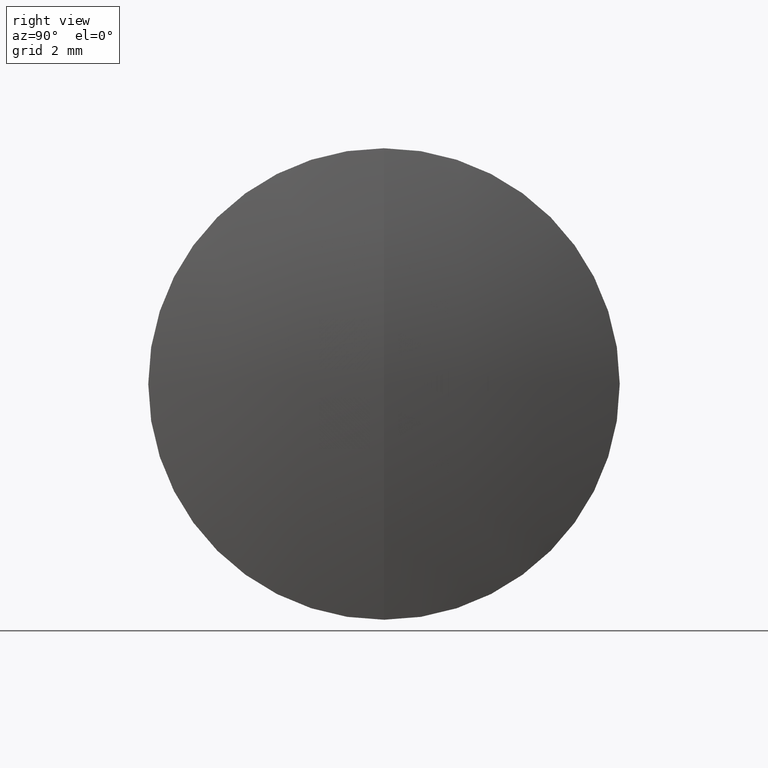
[diagram: clean part render]
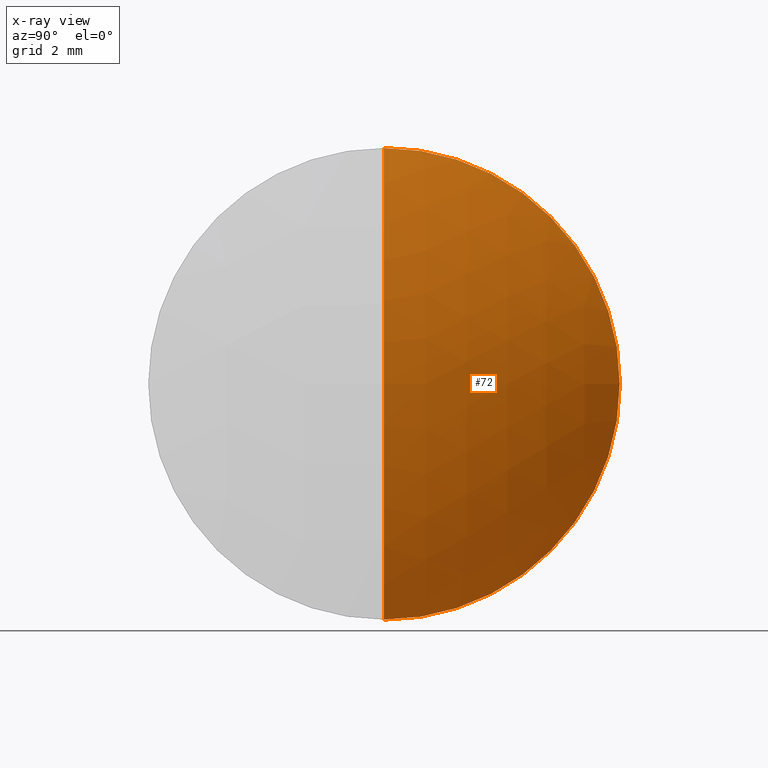
[diagram: x-ray — body ghosted, one internal face saturated and labeled with its STEP entity id]
A machine part, right view, then the same camera in x-ray: the body is ghosted and one INTERNAL B-rep face — a face not visible from any outside direction — is saturated and labeled: STEP entity #72.
In plain terms, the highlighted spherical surface has radius 7.066 mm.
Its self-contained STEP definition (entity closure, byte-faithful):
#5 = SPHERICAL_SURFACE ( 'NONE', #113, 7.066000000000000700 ) ;
#8 = DIRECTION ( 'NONE',  ( 0.0000000000000000000, 0.0000000000000000000, 1.000000000000000000 ) ) ;
#11 = EDGE_LOOP ( 'NONE', ( #147, #213, #43 ) ) ;
#36 = CARTESIAN_POINT ( 'NONE',  ( -0.8043704380087720600, 0.0000000000000000000, 0.0000000000000000000 ) ) ;
#43 = ORIENTED_EDGE ( 'NONE', *, *, #296, .F. ) ;
#47 = VERTEX_POINT ( 'NONE', #270 ) ;
#56 = VERTEX_POINT ( 'NONE', #65 ) ;
#60 = DIRECTION ( 'NONE',  ( 0.0000000000000000000, 0.0000000000000000000, -1.000000000000000000 ) ) ;
#63 = CARTESIAN_POINT ( 'NONE',  ( -6.629175670804114500, 0.0000000000000000000, 1.127419418155393700E-016 ) ) ;
#65 = CARTESIAN_POINT ( 'NONE',  ( 0.4368243291958864300, 0.0000000000000000000, 5.454096559542993200E-016 ) ) ;
#72 = ADVANCED_FACE ( 'NONE', ( #305 ), #5, .T. ) ;
#83 = CIRCLE ( 'NONE', #339, 7.066000000000000700 ) ;
#113 = AXIS2_PLACEMENT_3D ( 'NONE', #214, #115, #8 ) ;
#115 = DIRECTION ( 'NONE',  ( 0.0000000000000000000, 1.000000000000000000, 0.0000000000000000000 ) ) ;
#126 = CIRCLE ( 'NONE', #311, 4.000000000000000000 ) ;
#147 = ORIENTED_EDGE ( 'NONE', *, *, #241, .F. ) ;
#165 = DIRECTION ( 'NONE',  ( 0.0000000000000000000, -1.000000000000000000, 0.0000000000000000000 ) ) ;
#186 = CARTESIAN_POINT ( 'NONE',  ( -6.629175670804114500, 0.0000000000000000000, 1.127419418155393700E-016 ) ) ;
#201 = DIRECTION ( 'NONE',  ( -0.0000000000000000000, 1.000000000000000000, 1.224646799147353200E-016 ) ) ;
#208 = VERTEX_POINT ( 'NONE', #264 ) ;
#213 = ORIENTED_EDGE ( 'NONE', *, *, #322, .T. ) ;
#214 = CARTESIAN_POINT ( 'NONE',  ( -6.629175670804114500, 0.0000000000000000000, 1.127419418155393700E-016 ) ) ;
#236 = DIRECTION ( 'NONE',  ( -1.000000000000000000, -0.0000000000000000000, -0.0000000000000000000 ) ) ;
#241 = EDGE_CURVE ( 'NONE', #56, #208, #83, .T. ) ;
#260 = AXIS2_PLACEMENT_3D ( 'NONE', #186, #201, #347 ) ;
#264 = CARTESIAN_POINT ( 'NONE',  ( -0.8043704380087720600, 0.0000000000000000000, 4.000000000000000000 ) ) ;
#270 = CARTESIAN_POINT ( 'NONE',  ( -0.8043704380087720600, 4.898587196589412800E-016, -4.000000000000000000 ) ) ;
#284 = CIRCLE ( 'NONE', #260, 7.066000000000000700 ) ;
#296 = EDGE_CURVE ( 'NONE', #208, #47, #126, .T. ) ;
#305 = FACE_OUTER_BOUND ( 'NONE', #11, .T. ) ;
#311 = AXIS2_PLACEMENT_3D ( 'NONE', #36, #236, #331 ) ;
#322 = EDGE_CURVE ( 'NONE', #56, #47, #284, .T. ) ;
#331 = DIRECTION ( 'NONE',  ( 0.0000000000000000000, 0.0000000000000000000, 1.000000000000000000 ) ) ;
#339 = AXIS2_PLACEMENT_3D ( 'NONE', #63, #165, #60 ) ;
#347 = DIRECTION ( 'NONE',  ( 0.0000000000000000000, -1.224646799147353500E-016, 1.000000000000000000 ) ) ;